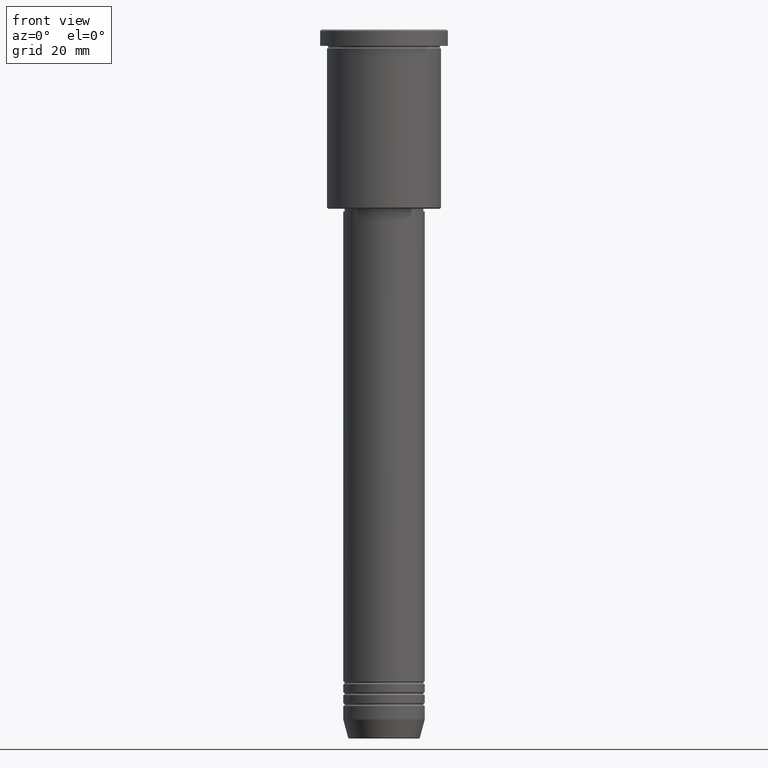
[diagram: clean part render]
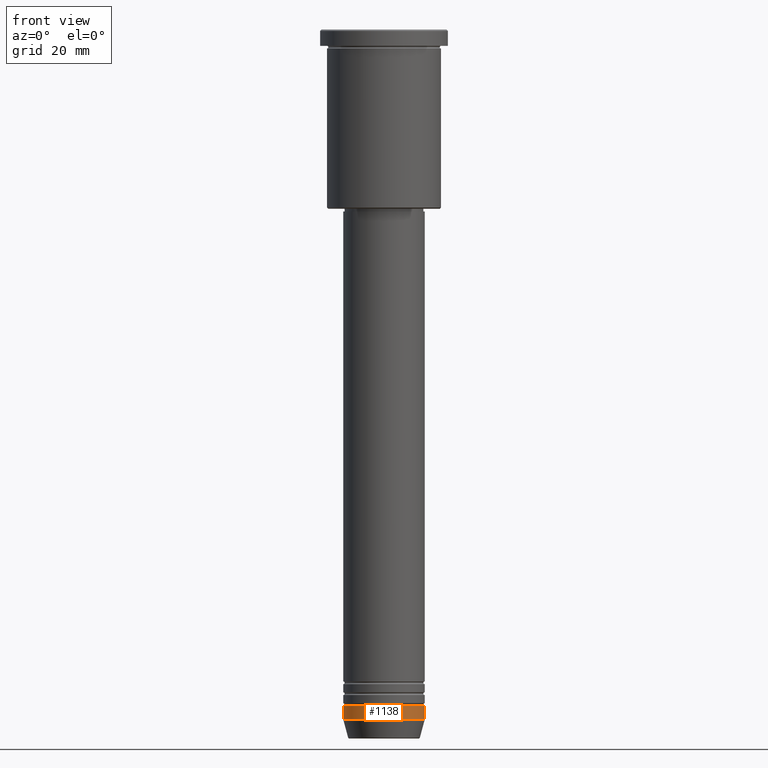
[diagram: same view with one face highlighted and labeled with its STEP entity id]
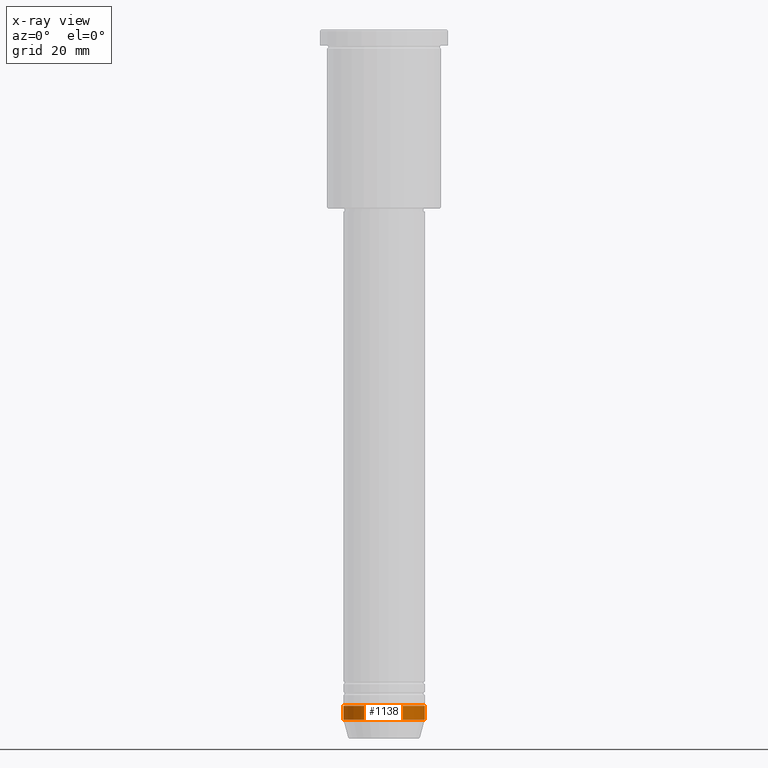
[diagram: x-ray of the same camera — body ghosted, the highlighted face saturated]
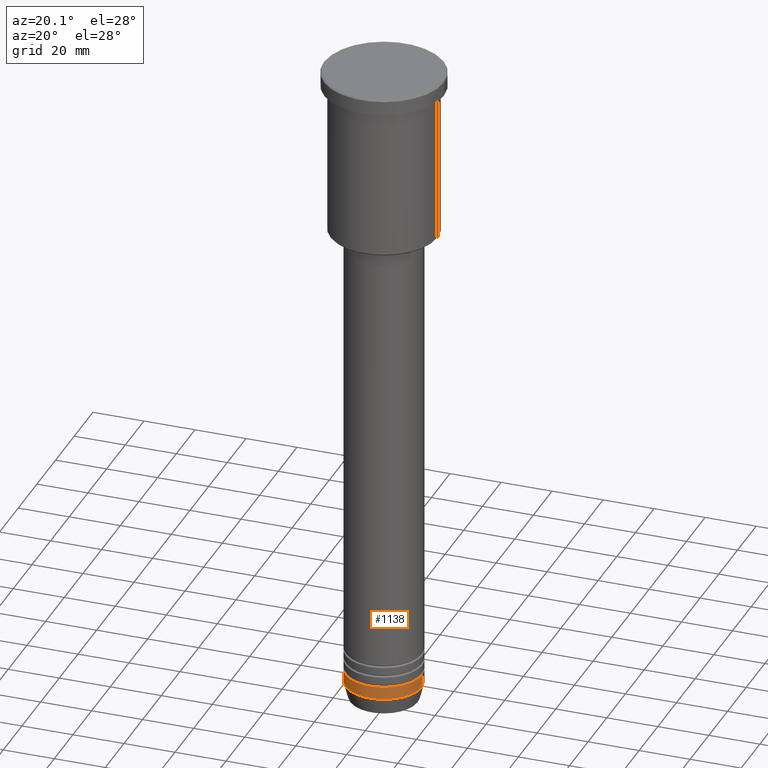
[diagram: same view with one face highlighted and labeled with its STEP entity id]
A machine part, front view. The second image highlights one B-rep face of the part: STEP entity #1138.
The next image is the same camera in x-ray: the body ghosted, the highlighted face saturated — about 0% of this face is hidden behind the body in this view.
A second angle (auxiliary view) of the same face is appended — the face is thin or edge-on in the first view.
In plain terms, the highlighted cylindrical surface (partial cylindrical patch) has radius 15 mm, axis along (-0, -0, 1).
Its self-contained STEP definition (entity closure, byte-faithful):
#26 = ORIENTED_EDGE ( 'NONE', *, *, #399, .T. ) ;
#39 = CIRCLE ( 'NONE', #784, 15.00000000000000000 ) ;
#41 = CARTESIAN_POINT ( 'NONE',  ( -15.00000000000000000, 1.836970198721029589E-15, -254.0000000000000000 ) ) ;
#75 = CARTESIAN_POINT ( 'NONE',  ( -15.00000000000000000, 1.836970198721029589E-15, 0.000000000000000000 ) ) ;
#100 = DIRECTION ( 'NONE',  ( -0.000000000000000000, -0.000000000000000000, 1.000000000000000000 ) ) ;
#138 = VECTOR ( 'NONE', #336, 1000.000000000000000 ) ;
#149 = ORIENTED_EDGE ( 'NONE', *, *, #264, .F. ) ;
#164 = CARTESIAN_POINT ( 'NONE',  ( 15.00000000000000000, 0.000000000000000000, 0.000000000000000000 ) ) ;
#253 = VECTOR ( 'NONE', #100, 1000.000000000000000 ) ;
#264 = EDGE_CURVE ( 'NONE', #883, #299, #462, .T. ) ;
#288 = CARTESIAN_POINT ( 'NONE',  ( 15.00000000000000000, 0.000000000000000000, -254.0000000000000000 ) ) ;
#293 = CIRCLE ( 'NONE', #630, 15.00000000000000000 ) ;
#299 = VERTEX_POINT ( 'NONE', #1100 ) ;
#336 = DIRECTION ( 'NONE',  ( -0.000000000000000000, -0.000000000000000000, 1.000000000000000000 ) ) ;
#340 = CARTESIAN_POINT ( 'NONE',  ( 15.00000000000000000, 0.000000000000000000, -249.0000000000000284 ) ) ;
#399 = EDGE_CURVE ( 'NONE', #883, #640, #293, .T. ) ;
#400 = DIRECTION ( 'NONE',  ( 1.000000000000000000, 0.000000000000000000, 0.000000000000000000 ) ) ;
#462 = LINE ( 'NONE', #75, #253 ) ;
#482 = DIRECTION ( 'NONE',  ( -0.000000000000000000, -0.000000000000000000, 1.000000000000000000 ) ) ;
#486 = ORIENTED_EDGE ( 'NONE', *, *, #897, .F. ) ;
#509 = EDGE_LOOP ( 'NONE', ( #149, #26, #518, #486 ) ) ;
#518 = ORIENTED_EDGE ( 'NONE', *, *, #1150, .T. ) ;
#630 = AXIS2_PLACEMENT_3D ( 'NONE', #853, #482, #400 ) ;
#640 = VERTEX_POINT ( 'NONE', #288 ) ;
#678 = CYLINDRICAL_SURFACE ( 'NONE', #959, 15.00000000000000000 ) ;
#687 = LINE ( 'NONE', #164, #138 ) ;
#773 = DIRECTION ( 'NONE',  ( 1.000000000000000000, 0.000000000000000000, 0.000000000000000000 ) ) ;
#784 = AXIS2_PLACEMENT_3D ( 'NONE', #970, #881, #773 ) ;
#853 = CARTESIAN_POINT ( 'NONE',  ( 0.000000000000000000, 0.000000000000000000, -254.0000000000000000 ) ) ;
#855 = FACE_OUTER_BOUND ( 'NONE', #509, .T. ) ;
#857 = VERTEX_POINT ( 'NONE', #340 ) ;
#869 = DIRECTION ( 'NONE',  ( 1.000000000000000000, 0.000000000000000000, 0.000000000000000000 ) ) ;
#881 = DIRECTION ( 'NONE',  ( -0.000000000000000000, -0.000000000000000000, 1.000000000000000000 ) ) ;
#883 = VERTEX_POINT ( 'NONE', #41 ) ;
#884 = CARTESIAN_POINT ( 'NONE',  ( 0.000000000000000000, 0.000000000000000000, 0.000000000000000000 ) ) ;
#897 = EDGE_CURVE ( 'NONE', #299, #857, #39, .T. ) ;
#959 = AXIS2_PLACEMENT_3D ( 'NONE', #884, #981, #869 ) ;
#970 = CARTESIAN_POINT ( 'NONE',  ( 0.000000000000000000, 0.000000000000000000, -249.0000000000000284 ) ) ;
#981 = DIRECTION ( 'NONE',  ( -0.000000000000000000, -0.000000000000000000, 1.000000000000000000 ) ) ;
#1100 = CARTESIAN_POINT ( 'NONE',  ( -15.00000000000000000, 1.836970198721029589E-15, -249.0000000000000284 ) ) ;
#1138 = ADVANCED_FACE ( 'NONE', ( #855 ), #678, .T. ) ;
#1150 = EDGE_CURVE ( 'NONE', #640, #857, #687, .T. ) ;